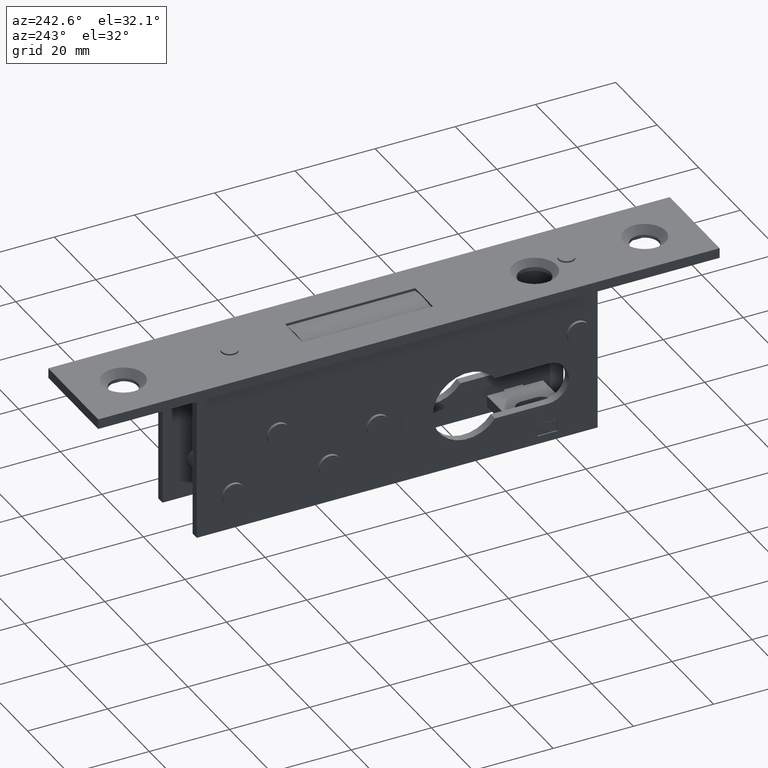
[diagram: clean part render]
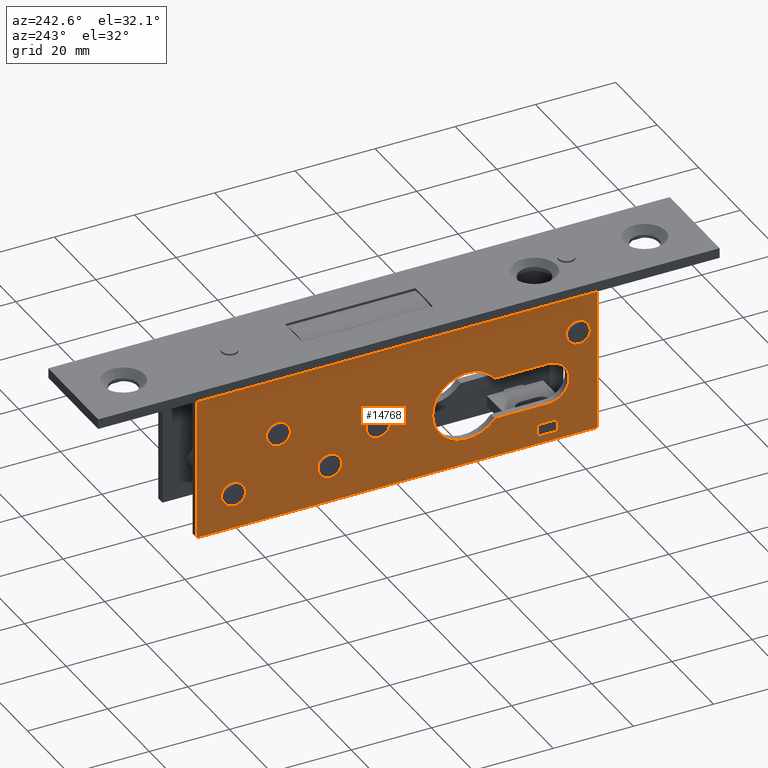
[diagram: same view with one face highlighted and labeled with its STEP entity id]
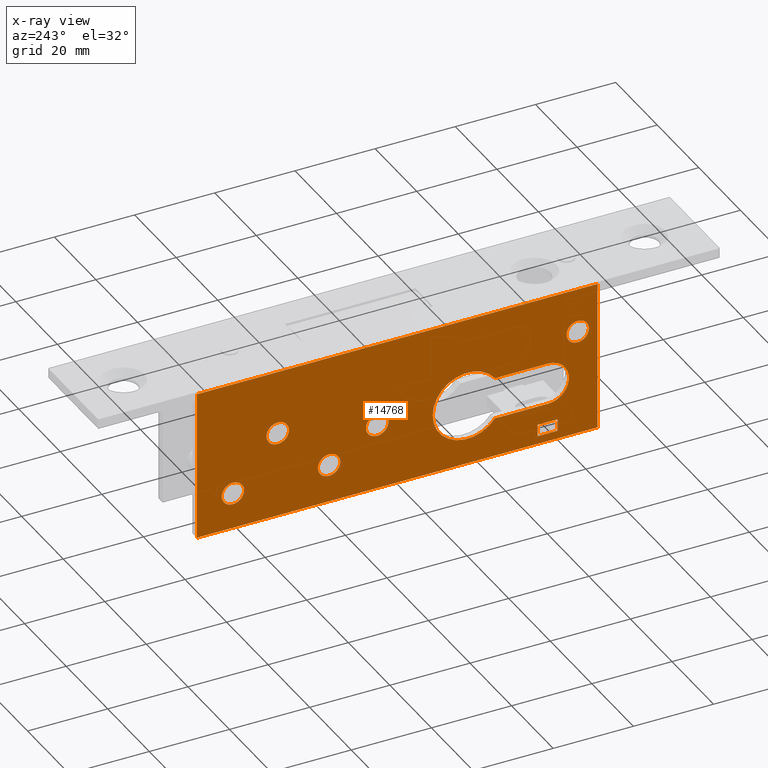
[diagram: x-ray of the same camera — body ghosted, the highlighted face saturated]
A machine part, auxiliary view. The second image highlights one B-rep face of the part: STEP entity #14768.
The next image is the same camera in x-ray: the body ghosted, the highlighted face saturated — about 0% of this face is hidden behind the body in this view.
In plain terms, the highlighted planar face has unit normal (1, -0, 0).
Its self-contained STEP definition (entity closure, byte-faithful):
#1 = AXIS2_PLACEMENT_3D ( 'NONE', #6127, #9012, #501 ) ;
#155 = CARTESIAN_POINT ( 'NONE',  ( -9.249999999999985789, -15.99999999999999645, -22.50000000000000355 ) ) ;
#170 = CARTESIAN_POINT ( 'NONE',  ( -9.249999999999989342, -48.50000000000000000, -37.50000000000000000 ) ) ;
#224 = DIRECTION ( 'NONE',  ( -1.000000000000000000, 1.214306433183764966E-16, -0.000000000000000000 ) ) ;
#484 = CARTESIAN_POINT ( 'NONE',  ( -9.249999999999976907, 51.50000000000000000, -32.49999999999987210 ) ) ;
#499 = EDGE_CURVE ( 'NONE', #7958, #16512, #16870, .T. ) ;
#501 = DIRECTION ( 'NONE',  ( 0.000000000000000000, 1.000000000000000000, 0.000000000000000000 ) ) ;
#584 = EDGE_CURVE ( 'NONE', #17714, #5094, #6552, .T. ) ;
#680 = CARTESIAN_POINT ( 'NONE',  ( -9.249999999999987566, -38.49999999999999289, -37.50000000000020606 ) ) ;
#768 = CARTESIAN_POINT ( 'NONE',  ( -9.249999999999982236, 9.300000000000009592, -21.00000000000000000 ) ) ;
#909 = EDGE_CURVE ( 'NONE', #1526, #7761, #4339, .T. ) ;
#1036 = AXIS2_PLACEMENT_3D ( 'NONE', #15558, #4105, #5619 ) ;
#1101 = ORIENTED_EDGE ( 'NONE', *, *, #16708, .F. ) ;
#1162 = DIRECTION ( 'NONE',  ( 0.000000000000000000, 1.000000000000000000, 0.000000000000000000 ) ) ;
#1229 = VERTEX_POINT ( 'NONE', #5751 ) ;
#1347 = CIRCLE ( 'NONE', #4335, 2.799999999999997158 ) ;
#1364 = CARTESIAN_POINT ( 'NONE',  ( -9.249999999999987566, -38.50000000000000000, -35.50000000000000000 ) ) ;
#1440 = CARTESIAN_POINT ( 'NONE',  ( -9.249999999999987566, -33.50000000000000000, -32.49999999999998579 ) ) ;
#1526 = VERTEX_POINT ( 'NONE', #2337 ) ;
#1679 = CIRCLE ( 'NONE', #17570, 2.800000000000003819 ) ;
#1737 = CIRCLE ( 'NONE', #13398, 8.650000000000000355 ) ;
#1855 = DIRECTION ( 'NONE',  ( 2.005460665869141041E-16, 1.000000000000000000, 0.000000000000000000 ) ) ;
#1987 = LINE ( 'NONE', #8547, #3734 ) ;
#2252 = ORIENTED_EDGE ( 'NONE', *, *, #16366, .T. ) ;
#2296 = ORIENTED_EDGE ( 'NONE', *, *, #15545, .T. ) ;
#2337 = CARTESIAN_POINT ( 'NONE',  ( -9.249999999999987566, -38.50000000000000711, -32.49999999999999289 ) ) ;
#2364 = CARTESIAN_POINT ( 'NONE',  ( -9.249999999999989342, -48.50000000000000000, 0.000000000000000000 ) ) ;
#2466 = FACE_BOUND ( 'NONE', #6927, .T. ) ;
#2867 = ORIENTED_EDGE ( 'NONE', *, *, #3032, .F. ) ;
#2880 = CARTESIAN_POINT ( 'NONE',  ( -9.249999999999978684, 31.30000000000000782, -16.00000000000000000 ) ) ;
#2995 = CARTESIAN_POINT ( 'NONE',  ( -9.249999999999980460, 18.50000000000000355, -28.00000000000000000 ) ) ;
#3032 = EDGE_CURVE ( 'NONE', #3826, #5830, #12419, .T. ) ;
#3034 = CARTESIAN_POINT ( 'NONE',  ( -9.249999999999989342, -48.50000000000000000, -37.50000000000000000 ) ) ;
#3035 = CARTESIAN_POINT ( 'NONE',  ( -9.249999999999987566, -36.10000000000000142, -22.50000000000000355 ) ) ;
#3039 = DIRECTION ( 'NONE',  ( 0.000000000000000000, 1.000000000000000000, 0.000000000000000000 ) ) ;
#3069 = CARTESIAN_POINT ( 'NONE',  ( -9.249999999999982236, 6.500000000000006217, -21.00000000000000000 ) ) ;
#3213 = AXIS2_PLACEMENT_3D ( 'NONE', #3462, #14681, #6268 ) ;
#3363 = CARTESIAN_POINT ( 'NONE',  ( -9.249999999999978684, 28.50000000000001066, -16.00000000000000000 ) ) ;
#3462 = CARTESIAN_POINT ( 'NONE',  ( -9.249999999999978684, 31.30000000000000782, -16.00000000000000000 ) ) ;
#3574 = CARTESIAN_POINT ( 'NONE',  ( -9.249999999999989342, -40.70000000000000284, -11.00000000000000000 ) ) ;
#3626 = AXIS2_PLACEMENT_3D ( 'NONE', #2880, #15553, #12658 ) ;
#3734 = VECTOR ( 'NONE', #15559, 1000.000000000000000 ) ;
#3749 = FACE_BOUND ( 'NONE', #13489, .T. ) ;
#3795 = EDGE_CURVE ( 'NONE', #5985, #11770, #7343, .T. ) ;
#3826 = VERTEX_POINT ( 'NONE', #3034 ) ;
#3981 = CIRCLE ( 'NONE', #7495, 2.799999999999997158 ) ;
#4105 = DIRECTION ( 'NONE',  ( -1.000000000000000000, 1.214306433183764966E-16, -0.000000000000000000 ) ) ;
#4314 = CARTESIAN_POINT ( 'NONE',  ( -9.249999999999984013, -7.349999999999996980, -22.50000000000000355 ) ) ;
#4317 = EDGE_LOOP ( 'NONE', ( #10161, #16964, #2867, #7631 ) ) ;
#4335 = AXIS2_PLACEMENT_3D ( 'NONE', #9907, #8483, #10019 ) ;
#4339 = LINE ( 'NONE', #680, #6768 ) ;
#4343 = LINE ( 'NONE', #12446, #10280 ) ;
#4413 = LINE ( 'NONE', #14121, #11019 ) ;
#4552 = CARTESIAN_POINT ( 'NONE',  ( -9.249999999999987566, -33.50000000000000000, -37.50000000000000000 ) ) ;
#4565 = AXIS2_PLACEMENT_3D ( 'NONE', #3069, #11389, #5632 ) ;
#4581 = VERTEX_POINT ( 'NONE', #15815 ) ;
#4934 = VECTOR ( 'NONE', #13973, 1000.000000000000000 ) ;
#4936 = EDGE_CURVE ( 'NONE', #11770, #5985, #1679, .T. ) ;
#4990 = VECTOR ( 'NONE', #14612, 1000.000000000000000 ) ;
#5094 = VERTEX_POINT ( 'NONE', #15861 ) ;
#5335 = CARTESIAN_POINT ( 'NONE',  ( -9.249999999999976907, 51.50000000000000711, -37.50000000000000000 ) ) ;
#5438 = EDGE_CURVE ( 'NONE', #9111, #17714, #13051, .T. ) ;
#5619 = DIRECTION ( 'NONE',  ( 0.000000000000000000, 1.000000000000000000, 0.000000000000000000 ) ) ;
#5632 = DIRECTION ( 'NONE',  ( 0.000000000000000000, 1.000000000000000000, 0.000000000000000000 ) ) ;
#5650 = DIRECTION ( 'NONE',  ( 2.005460665869141041E-16, 1.000000000000000000, 0.000000000000000000 ) ) ;
#5751 = CARTESIAN_POINT ( 'NONE',  ( -9.249999999999978684, 45.29999999999999716, -28.49999999999999645 ) ) ;
#5830 = VERTEX_POINT ( 'NONE', #5335 ) ;
#5895 = DIRECTION ( 'NONE',  ( 1.000000000000000000, -1.214306433183764966E-16, 0.000000000000000000 ) ) ;
#5924 = VERTEX_POINT ( 'NONE', #1440 ) ;
#5985 = VERTEX_POINT ( 'NONE', #15047 ) ;
#6127 = CARTESIAN_POINT ( 'NONE',  ( -9.249999999999978684, 42.50000000000000000, -28.49999999999999645 ) ) ;
#6141 = FACE_OUTER_BOUND ( 'NONE', #4317, .T. ) ;
#6166 = EDGE_LOOP ( 'NONE', ( #15547, #16977 ) ) ;
#6268 = DIRECTION ( 'NONE',  ( 0.000000000000000000, 1.000000000000000000, 0.000000000000000000 ) ) ;
#6373 = ORIENTED_EDGE ( 'NONE', *, *, #17875, .T. ) ;
#6515 = CARTESIAN_POINT ( 'NONE',  ( -9.249999999999976907, 51.50000000000000711, -17.25000000000000000 ) ) ;
#6552 = LINE ( 'NONE', #6515, #15120 ) ;
#6566 = EDGE_CURVE ( 'NONE', #14986, #9881, #7744, .T. ) ;
#6768 = VECTOR ( 'NONE', #10475, 1000.000000000000000 ) ;
#6927 = EDGE_LOOP ( 'NONE', ( #7887, #14919 ) ) ;
#7163 = DIRECTION ( 'NONE',  ( 1.214306433183764966E-16, 1.000000000000000000, 0.000000000000000000 ) ) ;
#7308 = VERTEX_POINT ( 'NONE', #2364 ) ;
#7343 = CIRCLE ( 'NONE', #8957, 2.800000000000003819 ) ;
#7371 = DIRECTION ( 'NONE',  ( 0.000000000000000000, 1.000000000000000000, 0.000000000000000000 ) ) ;
#7401 = CARTESIAN_POINT ( 'NONE',  ( -9.249999999999985789, -15.99999999999999645, -22.50000000000000355 ) ) ;
#7495 = AXIS2_PLACEMENT_3D ( 'NONE', #12423, #9363, #1162 ) ;
#7499 = CIRCLE ( 'NONE', #10064, 2.800000000000002931 ) ;
#7557 = EDGE_CURVE ( 'NONE', #13406, #11944, #7499, .T. ) ;
#7602 = CARTESIAN_POINT ( 'NONE',  ( -9.249999999999978684, 39.70000000000000284, -28.49999999999999645 ) ) ;
#7631 = ORIENTED_EDGE ( 'NONE', *, *, #13069, .T. ) ;
#7744 = CIRCLE ( 'NONE', #1036, 2.799999999999997158 ) ;
#7761 = VERTEX_POINT ( 'NONE', #1364 ) ;
#7887 = ORIENTED_EDGE ( 'NONE', *, *, #8395, .F. ) ;
#7924 = EDGE_LOOP ( 'NONE', ( #16618, #11710 ) ) ;
#7958 = VERTEX_POINT ( 'NONE', #3363 ) ;
#7999 = ORIENTED_EDGE ( 'NONE', *, *, #584, .T. ) ;
#8134 = CARTESIAN_POINT ( 'NONE',  ( -9.249999999999987566, -36.10000000000000142, -27.75000000000000355 ) ) ;
#8351 = ORIENTED_EDGE ( 'NONE', *, *, #909, .T. ) ;
#8367 = CARTESIAN_POINT ( 'NONE',  ( -9.249999999999976907, 51.50000000000000711, -37.50000000000000000 ) ) ;
#8395 = EDGE_CURVE ( 'NONE', #1229, #9769, #15821, .T. ) ;
#8483 = DIRECTION ( 'NONE',  ( -1.000000000000000000, 1.214306433183764966E-16, -0.000000000000000000 ) ) ;
#8547 = CARTESIAN_POINT ( 'NONE',  ( -9.249999999999976907, 51.50000000000000711, -27.75000000000000355 ) ) ;
#8957 = AXIS2_PLACEMENT_3D ( 'NONE', #16150, #14813, #3039 ) ;
#9012 = DIRECTION ( 'NONE',  ( -1.000000000000000000, 1.214306433183764966E-16, -0.000000000000000000 ) ) ;
#9111 = VERTEX_POINT ( 'NONE', #4314 ) ;
#9153 = EDGE_CURVE ( 'NONE', #9769, #1229, #1347, .T. ) ;
#9177 = CIRCLE ( 'NONE', #4565, 2.800000000000002931 ) ;
#9248 = CARTESIAN_POINT ( 'NONE',  ( -9.249999999999987566, -33.50000000000000000, -35.50000000000000000 ) ) ;
#9363 = DIRECTION ( 'NONE',  ( -1.000000000000000000, 1.214306433183764966E-16, -0.000000000000000000 ) ) ;
#9468 = ORIENTED_EDGE ( 'NONE', *, *, #3795, .F. ) ;
#9551 = CIRCLE ( 'NONE', #3626, 2.799999999999997158 ) ;
#9728 = PLANE ( 'NONE',  #9744 ) ;
#9744 = AXIS2_PLACEMENT_3D ( 'NONE', #8367, #18174, #9787 ) ;
#9769 = VERTEX_POINT ( 'NONE', #7602 ) ;
#9787 = DIRECTION ( 'NONE',  ( 1.214306433183764966E-16, 1.000000000000000000, 0.000000000000000000 ) ) ;
#9881 = VERTEX_POINT ( 'NONE', #3574 ) ;
#9901 = FACE_BOUND ( 'NONE', #16982, .T. ) ;
#9907 = CARTESIAN_POINT ( 'NONE',  ( -9.249999999999978684, 42.50000000000000000, -28.49999999999999645 ) ) ;
#9954 = ORIENTED_EDGE ( 'NONE', *, *, #13757, .T. ) ;
#10019 = DIRECTION ( 'NONE',  ( 0.000000000000000000, 1.000000000000000000, 0.000000000000000000 ) ) ;
#10064 = AXIS2_PLACEMENT_3D ( 'NONE', #13678, #13802, #10721 ) ;
#10126 = DIRECTION ( 'NONE',  ( 1.000000000000000000, -1.214306433183764966E-16, 0.000000000000000000 ) ) ;
#10161 = ORIENTED_EDGE ( 'NONE', *, *, #11195, .T. ) ;
#10280 = VECTOR ( 'NONE', #12510, 1000.000000000000000 ) ;
#10286 = DIRECTION ( 'NONE',  ( -1.214306433183764966E-16, -1.000000000000000000, -1.387778780781444887E-15 ) ) ;
#10420 = LINE ( 'NONE', #170, #4934 ) ;
#10475 = DIRECTION ( 'NONE',  ( 2.808647835564717055E-31, 2.312964634635741083E-15, -1.000000000000000000 ) ) ;
#10721 = DIRECTION ( 'NONE',  ( 0.000000000000000000, 1.000000000000000000, 0.000000000000000000 ) ) ;
#10874 = VECTOR ( 'NONE', #13023, 1000.000000000000000 ) ;
#10912 = VECTOR ( 'NONE', #10286, 1000.000000000000000 ) ;
#11019 = VECTOR ( 'NONE', #7163, 1000.000000000000000 ) ;
#11195 = EDGE_CURVE ( 'NONE', #7308, #11554, #12455, .T. ) ;
#11389 = DIRECTION ( 'NONE',  ( -1.000000000000000000, 1.214306433183764966E-16, -0.000000000000000000 ) ) ;
#11436 = EDGE_LOOP ( 'NONE', ( #8351, #9954, #13199, #12366 ) ) ;
#11554 = VERTEX_POINT ( 'NONE', #15568 ) ;
#11676 = VERTEX_POINT ( 'NONE', #8134 ) ;
#11710 = ORIENTED_EDGE ( 'NONE', *, *, #499, .F. ) ;
#11770 = VERTEX_POINT ( 'NONE', #13790 ) ;
#11944 = VERTEX_POINT ( 'NONE', #14876 ) ;
#12015 = CARTESIAN_POINT ( 'NONE',  ( -9.249999999999976907, 51.50000000000000711, 0.000000000000000000 ) ) ;
#12154 = DIRECTION ( 'NONE',  ( -1.214306433183764966E-16, -1.000000000000000000, 0.000000000000000000 ) ) ;
#12158 = EDGE_CURVE ( 'NONE', #5924, #1526, #13328, .T. ) ;
#12168 = EDGE_LOOP ( 'NONE', ( #15202, #9468 ) ) ;
#12175 = AXIS2_PLACEMENT_3D ( 'NONE', #155, #16951, #5650 ) ;
#12236 = AXIS2_PLACEMENT_3D ( 'NONE', #3035, #10126, #7371 ) ;
#12366 = ORIENTED_EDGE ( 'NONE', *, *, #12158, .T. ) ;
#12419 = LINE ( 'NONE', #17472, #14388 ) ;
#12423 = CARTESIAN_POINT ( 'NONE',  ( -9.249999999999989342, -43.50000000000000000, -11.00000000000000000 ) ) ;
#12446 = CARTESIAN_POINT ( 'NONE',  ( -9.249999999999976907, 51.50000000000000711, -37.50000000000000000 ) ) ;
#12455 = LINE ( 'NONE', #12015, #4990 ) ;
#12510 = DIRECTION ( 'NONE',  ( -0.000000000000000000, -0.000000000000000000, 1.000000000000000000 ) ) ;
#12658 = DIRECTION ( 'NONE',  ( 0.000000000000000000, 1.000000000000000000, 0.000000000000000000 ) ) ;
#12956 = FACE_BOUND ( 'NONE', #7924, .T. ) ;
#13023 = DIRECTION ( 'NONE',  ( -0.000000000000000000, 0.000000000000000000, 1.000000000000000000 ) ) ;
#13045 = EDGE_CURVE ( 'NONE', #16512, #7958, #9551, .T. ) ;
#13051 = CIRCLE ( 'NONE', #12175, 8.650000000000000355 ) ;
#13061 = DIRECTION ( 'NONE',  ( 1.214306433183764966E-16, 1.000000000000000000, -0.000000000000000000 ) ) ;
#13069 = EDGE_CURVE ( 'NONE', #3826, #7308, #10420, .T. ) ;
#13199 = ORIENTED_EDGE ( 'NONE', *, *, #13326, .T. ) ;
#13326 = EDGE_CURVE ( 'NONE', #15441, #5924, #15265, .T. ) ;
#13328 = LINE ( 'NONE', #484, #10912 ) ;
#13398 = AXIS2_PLACEMENT_3D ( 'NONE', #7401, #5895, #1855 ) ;
#13406 = VERTEX_POINT ( 'NONE', #768 ) ;
#13489 = EDGE_LOOP ( 'NONE', ( #7999, #6373, #2296, #2252, #17940 ) ) ;
#13646 = FACE_BOUND ( 'NONE', #11436, .T. ) ;
#13678 = CARTESIAN_POINT ( 'NONE',  ( -9.249999999999982236, 6.500000000000006217, -21.00000000000000000 ) ) ;
#13757 = EDGE_CURVE ( 'NONE', #7761, #15441, #4413, .T. ) ;
#13790 = CARTESIAN_POINT ( 'NONE',  ( -9.249999999999980460, 21.30000000000000782, -28.00000000000000000 ) ) ;
#13802 = DIRECTION ( 'NONE',  ( -1.000000000000000000, 1.214306433183764966E-16, -0.000000000000000000 ) ) ;
#13973 = DIRECTION ( 'NONE',  ( -0.000000000000000000, -0.000000000000000000, 1.000000000000000000 ) ) ;
#14121 = CARTESIAN_POINT ( 'NONE',  ( -9.249999999999976907, 51.50000000000000711, -35.50000000000000000 ) ) ;
#14205 = DIRECTION ( 'NONE',  ( 0.000000000000000000, 1.000000000000000000, 0.000000000000000000 ) ) ;
#14285 = FACE_BOUND ( 'NONE', #6166, .T. ) ;
#14388 = VECTOR ( 'NONE', #13061, 1000.000000000000000 ) ;
#14612 = DIRECTION ( 'NONE',  ( 1.214306433183764966E-16, 1.000000000000000000, -0.000000000000000000 ) ) ;
#14616 = EDGE_CURVE ( 'NONE', #9881, #14986, #3981, .T. ) ;
#14681 = DIRECTION ( 'NONE',  ( -1.000000000000000000, 1.214306433183764966E-16, -0.000000000000000000 ) ) ;
#14768 = ADVANCED_FACE ( 'NONE', ( #9901, #17127, #12956, #14285, #2466, #13646, #3749, #6141 ), #9728, .F. ) ;
#14813 = DIRECTION ( 'NONE',  ( -1.000000000000000000, 1.214306433183764966E-16, -0.000000000000000000 ) ) ;
#14876 = CARTESIAN_POINT ( 'NONE',  ( -9.249999999999982236, 3.700000000000004619, -21.00000000000000000 ) ) ;
#14919 = ORIENTED_EDGE ( 'NONE', *, *, #9153, .F. ) ;
#14986 = VERTEX_POINT ( 'NONE', #17242 ) ;
#15047 = CARTESIAN_POINT ( 'NONE',  ( -9.249999999999980460, 15.69999999999999929, -28.00000000000000000 ) ) ;
#15120 = VECTOR ( 'NONE', #12154, 1000.000000000000000 ) ;
#15202 = ORIENTED_EDGE ( 'NONE', *, *, #4936, .F. ) ;
#15265 = LINE ( 'NONE', #4552, #10874 ) ;
#15437 = CARTESIAN_POINT ( 'NONE',  ( -9.249999999999984013, -22.87459089691887826, -17.25000000000000000 ) ) ;
#15441 = VERTEX_POINT ( 'NONE', #9248 ) ;
#15545 = EDGE_CURVE ( 'NONE', #11676, #4581, #1987, .T. ) ;
#15547 = ORIENTED_EDGE ( 'NONE', *, *, #14616, .F. ) ;
#15553 = DIRECTION ( 'NONE',  ( -1.000000000000000000, 1.214306433183764966E-16, -0.000000000000000000 ) ) ;
#15558 = CARTESIAN_POINT ( 'NONE',  ( -9.249999999999989342, -43.50000000000000000, -11.00000000000000000 ) ) ;
#15559 = DIRECTION ( 'NONE',  ( 1.214306433183764966E-16, 1.000000000000000000, 0.000000000000000000 ) ) ;
#15568 = CARTESIAN_POINT ( 'NONE',  ( -9.249999999999976907, 51.50000000000000711, 0.000000000000000000 ) ) ;
#15747 = CIRCLE ( 'NONE', #12236, 5.250000000000000888 ) ;
#15815 = CARTESIAN_POINT ( 'NONE',  ( -9.249999999999985789, -22.87459089691888536, -27.75000000000000355 ) ) ;
#15821 = CIRCLE ( 'NONE', #1, 2.799999999999997158 ) ;
#15861 = CARTESIAN_POINT ( 'NONE',  ( -9.249999999999987566, -36.10000000000000142, -17.25000000000000000 ) ) ;
#16150 = CARTESIAN_POINT ( 'NONE',  ( -9.249999999999980460, 18.50000000000000355, -28.00000000000000000 ) ) ;
#16366 = EDGE_CURVE ( 'NONE', #4581, #9111, #1737, .T. ) ;
#16374 = CARTESIAN_POINT ( 'NONE',  ( -9.249999999999978684, 34.10000000000000853, -16.00000000000000000 ) ) ;
#16512 = VERTEX_POINT ( 'NONE', #16374 ) ;
#16618 = ORIENTED_EDGE ( 'NONE', *, *, #13045, .F. ) ;
#16630 = EDGE_CURVE ( 'NONE', #5830, #11554, #4343, .T. ) ;
#16708 = EDGE_CURVE ( 'NONE', #11944, #13406, #9177, .T. ) ;
#16870 = CIRCLE ( 'NONE', #3213, 2.799999999999997158 ) ;
#16951 = DIRECTION ( 'NONE',  ( 1.000000000000000000, -1.214306433183764966E-16, 0.000000000000000000 ) ) ;
#16964 = ORIENTED_EDGE ( 'NONE', *, *, #16630, .F. ) ;
#16977 = ORIENTED_EDGE ( 'NONE', *, *, #6566, .F. ) ;
#16982 = EDGE_LOOP ( 'NONE', ( #17125, #1101 ) ) ;
#17125 = ORIENTED_EDGE ( 'NONE', *, *, #7557, .F. ) ;
#17127 = FACE_BOUND ( 'NONE', #12168, .T. ) ;
#17242 = CARTESIAN_POINT ( 'NONE',  ( -9.249999999999989342, -46.29999999999999716, -11.00000000000000000 ) ) ;
#17472 = CARTESIAN_POINT ( 'NONE',  ( -9.249999999999976907, 51.50000000000000711, -37.50000000000000000 ) ) ;
#17570 = AXIS2_PLACEMENT_3D ( 'NONE', #2995, #224, #14205 ) ;
#17714 = VERTEX_POINT ( 'NONE', #15437 ) ;
#17875 = EDGE_CURVE ( 'NONE', #5094, #11676, #15747, .T. ) ;
#17940 = ORIENTED_EDGE ( 'NONE', *, *, #5438, .T. ) ;
#18174 = DIRECTION ( 'NONE',  ( 1.000000000000000000, -1.214306433183764966E-16, 0.000000000000000000 ) ) ;